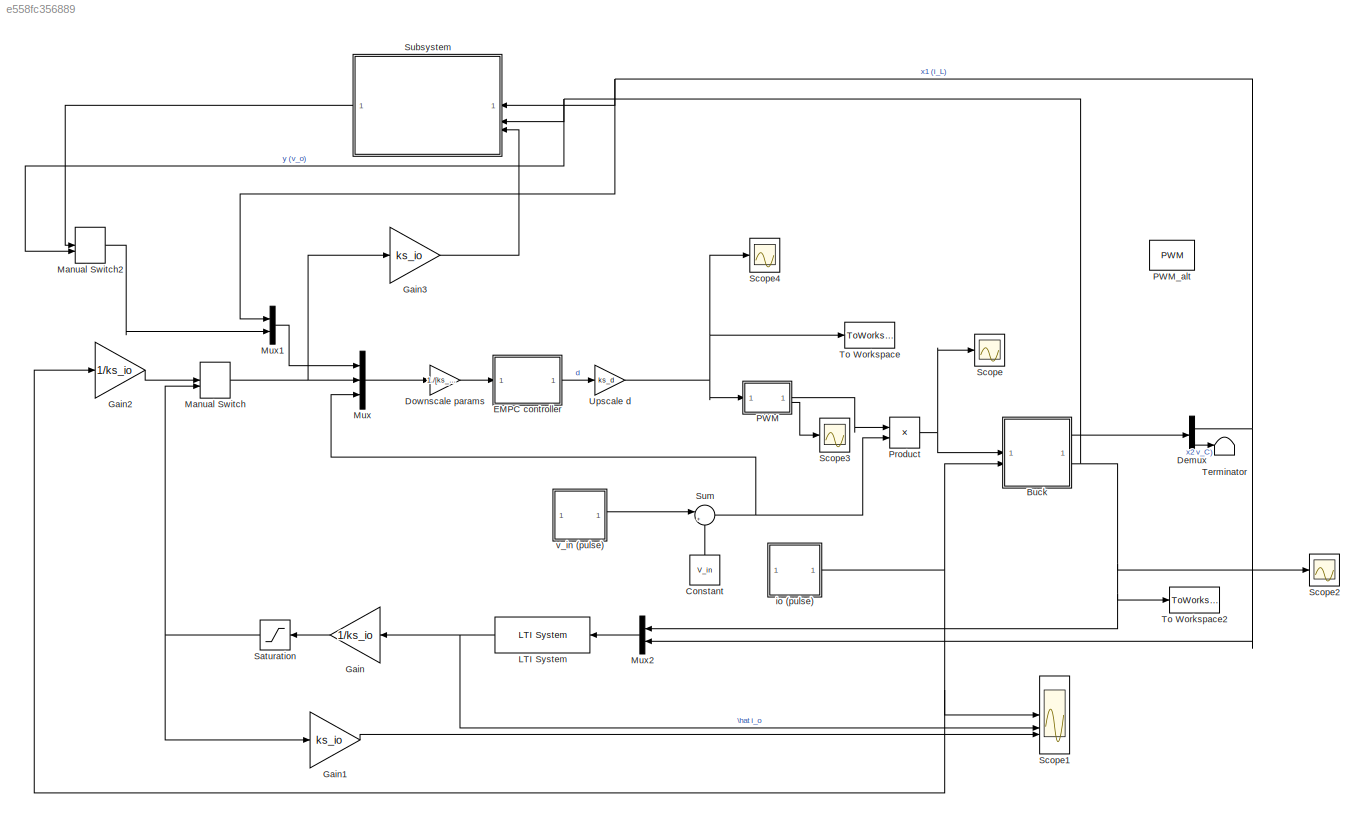
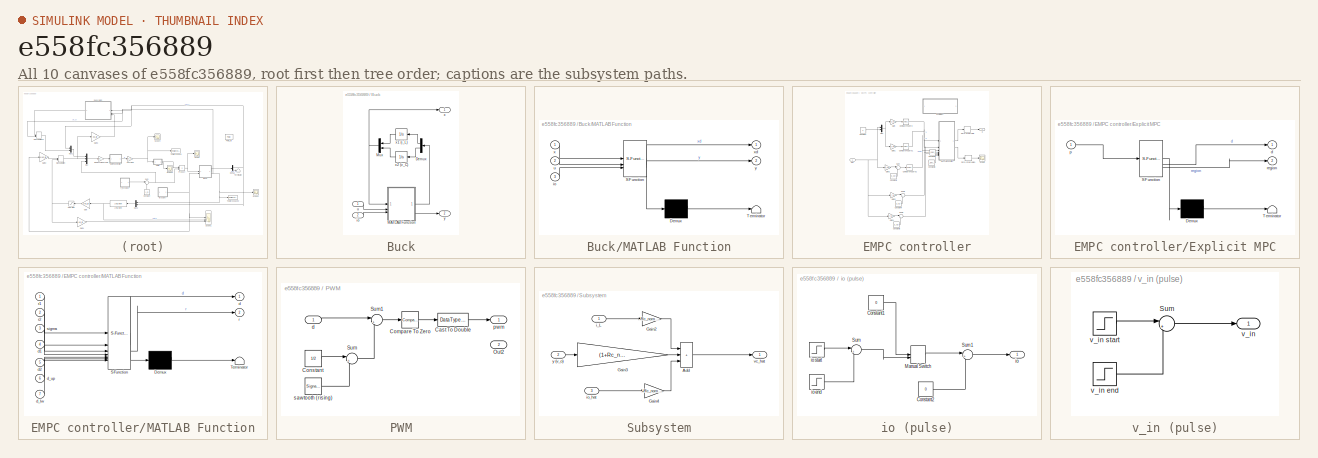
[diagram: thumbnail index - all 10 canvases of the model, root first then tree order]
MODEL slx_e558fc356889
KIND model
CONFIG AbsTol = auto
CONFIG EnableMultiTasking = off
CONFIG FixedStep = dt_sim
CONFIG MaxStep = T_sw/70
CONFIG MinStep = auto
CONFIG RelTol = 1e-4
CONFIG SampleTimeConstraint = Unconstrained
CONFIG SolverName = FixedStepAuto
CONFIG StartTime = 0.0
CONFIG StopTime = N*T_sw
BLOCK [SubSystem] Buck
BLOCK [Demux] Buck/Demux
  NameLocation = top
  Outputs = 2
BLOCK [SubSystem] Buck/MATLAB Function
  ErrorFcn = Stateflow.Translate.translate
  PermitHierarchicalResolution = ExplicitOnly
  SFBlockType = MATLAB Function
  TreatAsAtomicUnit = on
BLOCK [Demux] Buck/MATLAB Function/ Demux 
  Outputs = 1
BLOCK [S-Function] Buck/MATLAB Function/ SFunction 
  EnableBusSupport = on
  FunctionName = sf_sfun
  Parameters = data
  PortCounts = [3 3]
  SFcnIsStateOwnerBlock = off
  SFunctionDeploymentMode = off
  Tag = Stateflow S-Function 2
BLOCK [Terminator] Buck/MATLAB Function/ Terminator 
BLOCK [Inport] Buck/MATLAB Function/io
  Port = 3
BLOCK [Inport] Buck/MATLAB Function/u
  Port = 2
BLOCK [Inport] Buck/MATLAB Function/x
BLOCK [Outport] Buck/MATLAB Function/xd
BLOCK [Outport] Buck/MATLAB Function/y
  Port = 2
BLOCK [Mux] Buck/Mux
  DisplayOption = bar
  Inputs = 2
  NameLocation = top
BLOCK [Inport] Buck/io
  Port = 2
BLOCK [Inport] Buck/u
BLOCK [Outport] Buck/x
BLOCK [Integrator] Buck/x1 (i_L)
  InitialCondition = x0(1)
  LimitOutput = on
  LowerSaturationLimit = 0
  NameLocation = top
BLOCK [Integrator] Buck/x2 (v_C)
  InitialCondition = x0(2)
  NameLocation = top
BLOCK [Outport] Buck/y
  Port = 2
BLOCK [Constant] Constant
  NameLocation = right
  Value = V_in
BLOCK [Demux] Demux
  Outputs = 2
BLOCK [Gain] Downscale params
  Gain = 1./[ks_i_L, ks_v_C, 1, ks_v_in]
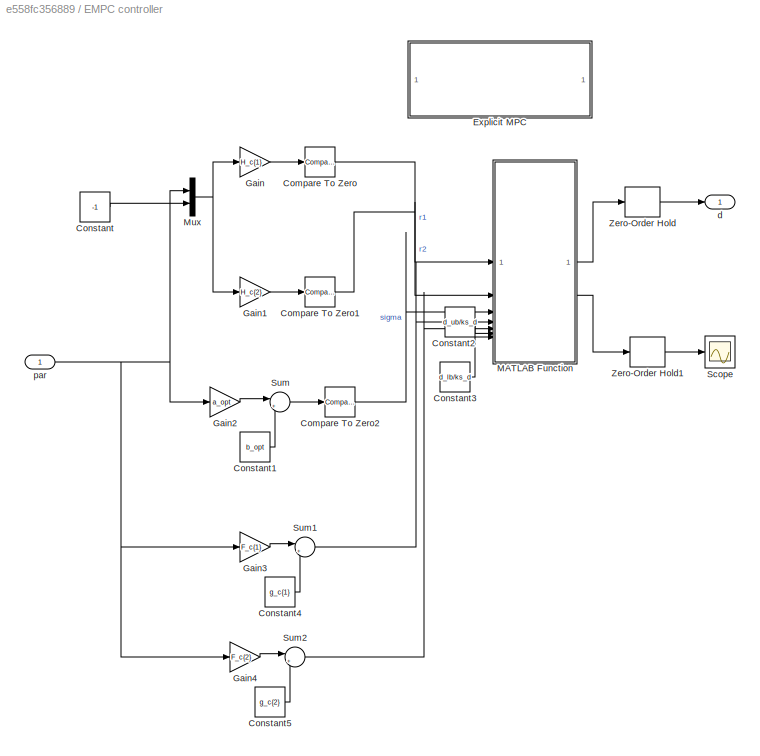
BLOCK [SubSystem] EMPC controller
BLOCK [Reference] EMPC controller/Compare To Zero  REF=simulink/Logic and Bit
Operations/Compare
To Zero
  SourceBlock = simulink/Logic and Bit\nOperations/Compare\nTo Zero
  SourceType = Compare To Zero
BLOCK [Reference] EMPC controller/Compare To Zero1  REF=simulink/Logic and Bit
Operations/Compare
To Zero
  SourceBlock = simulink/Logic and Bit\nOperations/Compare\nTo Zero
  SourceType = Compare To Zero
BLOCK [Reference] EMPC controller/Compare To Zero2  REF=simulink/Logic and Bit
Operations/Compare
To Zero
  SourceBlock = simulink/Logic and Bit\nOperations/Compare\nTo Zero
  SourceType = Compare To Zero
BLOCK [Constant] EMPC controller/Constant
  Value = -1
BLOCK [Constant] EMPC controller/Constant1
  Value = b_opt
BLOCK [Constant] EMPC controller/Constant2
  Value = d_ub/ks_d
BLOCK [Constant] EMPC controller/Constant3
  Value = d_lb/ks_d
BLOCK [Constant] EMPC controller/Constant4
  Value = g_c{1}
BLOCK [Constant] EMPC controller/Constant5
  Value = g_c{2}
BLOCK [SubSystem] EMPC controller/Explicit MPC
  Commented = on
  ErrorFcn = Stateflow.Translate.translate
  PermitHierarchicalResolution = ExplicitOnly
  SFBlockType = MATLAB Function
  TreatAsAtomicUnit = on
BLOCK [Demux] EMPC controller/Explicit MPC/ Demux 
  Outputs = 1
BLOCK [S-Function] EMPC controller/Explicit MPC/ SFunction 
  EnableBusSupport = on
  FunctionName = sf_sfun
  Parameters = data
  PortCounts = [1 3]
  SFcnIsStateOwnerBlock = off
  SFunctionDeploymentMode = off
  Tag = Stateflow S-Function 1
BLOCK [Terminator] EMPC controller/Explicit MPC/ Terminator 
BLOCK [Outport] EMPC controller/Explicit MPC/d
BLOCK [Inport] EMPC controller/Explicit MPC/p
BLOCK [Outport] EMPC controller/Explicit MPC/region
  Port = 2
BLOCK [Gain] EMPC controller/Gain
  Gain = H_c{1}
  Multiplication = Matrix(K*u)
BLOCK [Gain] EMPC controller/Gain1
  Gain = H_c{2}
  Multiplication = Matrix(K*u)
BLOCK [Gain] EMPC controller/Gain2
  Gain = a_opt
  Multiplication = Matrix(K*u)
BLOCK [Gain] EMPC controller/Gain3
  Gain = F_c{1}
  Multiplication = Matrix(K*u)
BLOCK [Gain] EMPC controller/Gain4
  Gain = F_c{2}
  Multiplication = Matrix(K*u)
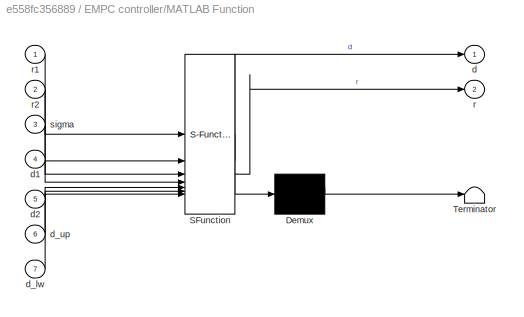
BLOCK [SubSystem] EMPC controller/MATLAB Function
  ErrorFcn = Stateflow.Translate.translate
  PermitHierarchicalResolution = ExplicitOnly
  SFBlockType = MATLAB Function
  TreatAsAtomicUnit = on
BLOCK [Demux] EMPC controller/MATLAB Function/ Demux 
  Outputs = 1
BLOCK [S-Function] EMPC controller/MATLAB Function/ SFunction 
  EnableBusSupport = on
  FunctionName = sf_sfun
  PortCounts = [7 3]
  SFcnIsStateOwnerBlock = off
  SFunctionDeploymentMode = off
  Tag = Stateflow S-Function 3
BLOCK [Terminator] EMPC controller/MATLAB Function/ Terminator 
BLOCK [Outport] EMPC controller/MATLAB Function/d
BLOCK [Inport] EMPC controller/MATLAB Function/d1
  Port = 4
BLOCK [Inport] EMPC controller/MATLAB Function/d2
  Port = 5
BLOCK [Inport] EMPC controller/MATLAB Function/d_lw
  Port = 7
BLOCK [Inport] EMPC controller/MATLAB Function/d_up
  Port = 6
BLOCK [Outport] EMPC controller/MATLAB Function/r
  Port = 2
BLOCK [Inport] EMPC controller/MATLAB Function/r1
BLOCK [Inport] EMPC controller/MATLAB Function/r2
  Port = 2
BLOCK [Inport] EMPC controller/MATLAB Function/sigma
  Port = 3
BLOCK [Mux] EMPC controller/Mux
  DisplayOption = bar
  Inputs = 2
BLOCK [Scope] EMPC controller/Scope
  Floating = off
  NumInputPorts = 1
  ScopeSpecificationString = Simulink.scopes.TimeScopeBlockCfg('CurrentConfiguration', extmgr.ConfigurationSet(extmgr.Configuration('Core','General UI',true),extmgr.Configuration('Core','Source UI',true),extmgr.Configuration('Sources','WiredSimulink',true,'DataLoggingVariableName','ScopeData1'),extmgr.Configuration('Visuals','Time Domain',true,'SerializedDisplays',{struct('MinYLimReal','-0.25','MaxYLimReal','2.25','YLabelReal...<+1520ch>
BLOCK [Sum] EMPC controller/Sum
  Inputs = |++
BLOCK [Sum] EMPC controller/Sum1
  Inputs = |++
BLOCK [Sum] EMPC controller/Sum2
  Inputs = |++
BLOCK [ZeroOrderHold] EMPC controller/Zero-Order Hold
  SampleTime = T_sw
BLOCK [ZeroOrderHold] EMPC controller/Zero-Order Hold1
  SampleTime = T_sw
BLOCK [Outport] EMPC controller/d
BLOCK [Inport] EMPC controller/par
BLOCK [Gain] Gain
  Gain = 1/ks_io
  NameLocation = top
BLOCK [Gain] Gain1
  Gain = ks_io
BLOCK [Gain] Gain2
  Gain = 1/ks_io
BLOCK [Gain] Gain3
  Gain = ks_io
BLOCK [Reference] LTI System  REF=cstblocks/LTI System
  NameLocation = top
  SourceBlock = cstblocks/LTI System
  SourceType = LTI Block
BLOCK [ManualSwitch] Manual Switch
  CurrentSetting = 0
BLOCK [ManualSwitch] Manual Switch2
  CurrentSetting = 0
BLOCK [Mux] Mux
  DisplayOption = bar
  Inputs = 3
BLOCK [Mux] Mux1
  DisplayOption = bar
  Inputs = 2
BLOCK [Mux] Mux2
  DisplayOption = bar
  Inputs = 2
  NameLocation = top
BLOCK [SubSystem] PWM
BLOCK [DataTypeConversion] PWM/Cast To Double
  OutDataTypeStr = double
  OutMax = 1
  OutMin = 0
  RndMeth = Round
  SaturateOnIntegerOverflow = off
BLOCK [Reference] PWM/Compare To Zero  REF=simulink/Logic and Bit
Operations/Compare
To Zero
  SourceBlock = simulink/Logic and Bit\nOperations/Compare\nTo Zero
  SourceType = Compare To Zero
BLOCK [Constant] PWM/Constant
  Value = 1/2
BLOCK [Outport] PWM/Out2
  Port = 2
BLOCK [Sum] PWM/Sum
  Inputs = |++
BLOCK [Sum] PWM/Sum1
  Inputs = |+-
BLOCK [Inport] PWM/d
BLOCK [Outport] PWM/pwm
BLOCK [SignalGenerator] PWM/sawtooth (rising)
  Amplitude = -1/2
  Frequency = f_sw
  WaveForm = sawtooth
BLOCK [Reference] PWM_alt  REF=simulink/Discontinuities/PWM
  Commented = on
  DisableCoverage = on
  SourceBlock = simulink/Discontinuities/PWM
  SourceType = PWM
BLOCK [Product] Product
BLOCK [Saturate] Saturation
  LowerLimit = 0
  NameLocation = top
  UpperLimit = 5
BLOCK [Scope] Scope
  Floating = off
  NumInputPorts = 1
  ScopeSpecificationString = Simulink.scopes.TimeScopeBlockCfg('CurrentConfiguration', extmgr.ConfigurationSet(extmgr.Configuration('Core','General UI',true),extmgr.Configuration('Core','Source UI',true),extmgr.Configuration('Sources','WiredSimulink',true,'DataLoggingVariableName','ScopeData1'),extmgr.Configuration('Visuals','Time Domain',true,'SerializedDisplays',{struct('MinYLimReal','-6.25','MaxYLimReal','56.25','YLabelRea...<+1512ch>
BLOCK [Scope] Scope1
  Floating = off
  NumInputPorts = 3
  ScopeSpecificationString = Simulink.scopes.TimeScopeBlockCfg('CurrentConfiguration', extmgr.ConfigurationSet(extmgr.Configuration('Core','General UI',true),extmgr.Configuration('Core','Source UI',true),extmgr.Configuration('Sources','WiredSimulink',true,'DataLoggingVariableName','ScopeData1'),extmgr.Configuration('Visuals','Time Domain',true,'SerializedDisplays',{struct('MinYLimReal','-1.70521','MaxYLimReal','15.34686','YLa...<+1621ch>
BLOCK [Scope] Scope2
  Floating = off
  NumInputPorts = 1
  ScopeSpecificationString = Simulink.scopes.TimeScopeBlockCfg('CurrentConfiguration', extmgr.ConfigurationSet(extmgr.Configuration('Core','General UI',true),extmgr.Configuration('Core','Source UI',true),extmgr.Configuration('Sources','WiredSimulink',true,'DataLoggingVariableName','ScopeData2'),extmgr.Configuration('Visuals','Time Domain',true,'SerializedDisplays',{struct('MinYLimReal','4.88323','MaxYLimReal','5.05424','YLabe...<+1527ch>
BLOCK [Scope] Scope3
  Floating = off
  NumInputPorts = 1
  ScopeSpecificationString = Simulink.scopes.TimeScopeBlockCfg('CurrentConfiguration', extmgr.ConfigurationSet(extmgr.Configuration('Core','General UI',true),extmgr.Configuration('Core','Source UI',true),extmgr.Configuration('Sources','WiredSimulink',true,'DataLoggingVariableName','ScopeData1'),extmgr.Configuration('Visuals','Time Domain',true,'SerializedDisplays',{struct('MinYLimReal','-0.10611','MaxYLimReal','1.1229','YLabe...<+1472ch>
BLOCK [Scope] Scope4
  Floating = off
  NumInputPorts = 1
  ScopeSpecificationString = Simulink.scopes.TimeScopeBlockCfg('CurrentConfiguration', extmgr.ConfigurationSet(extmgr.Configuration('Core','General UI',true),extmgr.Configuration('Core','Source UI',true),extmgr.Configuration('Sources','WiredSimulink',true,'DataLoggingVariableName','ScopeData1'),extmgr.Configuration('Visuals','Time Domain',true,'SerializedDisplays',{struct('MinYLimReal','-0.10611','MaxYLimReal','1.1229','YLabe...<+1472ch>
BLOCK [SubSystem] Subsystem
  NameLocation = top
BLOCK [Sum] Subsystem/Add
  IconShape = rectangular
  Inputs = +++
BLOCK [Gain] Subsystem/Gain2
  Gain = -Rc_nominal
BLOCK [Gain] Subsystem/Gain3
  Gain = (1+Rc_nominal/RL_nominal)
BLOCK [Gain] Subsystem/Gain4
  Gain = +Rc_nominal
BLOCK [Inport] Subsystem/i_L
  NameLocation = top
BLOCK [Inport] Subsystem/io_hat
  NameLocation = top
  Port = 3
BLOCK [Outport] Subsystem/vc_hat
BLOCK [Inport] Subsystem/y (v_o)
  Port = 2
BLOCK [Sum] Sum
  Inputs = |++
BLOCK [Terminator] Terminator
BLOCK [ToWorkspace] To Workspace
  FixptAsFi = on
  MaxDataPoints = inf
  SampleTime = -1
  SaveFormat = Timeseries
  VariableName = d
BLOCK [ToWorkspace] To Workspace2
  FixptAsFi = on
  MaxDataPoints = inf
  SampleTime = -1
  SaveFormat = Timeseries
  VariableName = y
BLOCK [Gain] Upscale d
  Gain = ks_d
BLOCK [SubSystem] io (pulse)
BLOCK [Constant] io (pulse)/Constant1
  Value = 0
BLOCK [Constant] io (pulse)/Constant2
  Value = 0
BLOCK [ManualSwitch] io (pulse)/Manual Switch
  CurrentSetting = 0
BLOCK [Sum] io (pulse)/Sum
  Inputs = |++
BLOCK [Sum] io (pulse)/Sum1
  Inputs = |++
BLOCK [Outport] io (pulse)/io
BLOCK [Step] io (pulse)/io end
  After = -0.8*io
  SampleTime = 0
  Time = N_io_end*T_sw
BLOCK [Step] io (pulse)/io start
  After = io
  SampleTime = 0
  Time = N_io_start*T_sw
BLOCK [SubSystem] v_in (pulse)
BLOCK [Sum] v_in (pulse)/Sum
  Inputs = |++
BLOCK [Outport] v_in (pulse)/v_in
BLOCK [Step] v_in (pulse)/v_in end
  After = -v_in
  SampleTime = 0
  Time = N_v_in_end*T_sw
BLOCK [Step] v_in (pulse)/v_in start
  After = v_in
  SampleTime = 0
  Time = N_v_in_start*T_sw
LINE Buck/Demux:1 -> Buck/x1 (i_L):1
LINE Buck/Demux:2 -> Buck/x2 (v_C):1
LINE Buck/MATLAB Function:1 -> Buck/Demux:1
LINE Buck/MATLAB Function:2 -> Buck/y:1
NET Buck/Mux:1 -> Buck/MATLAB Function:1, Buck/x:1
LINE Buck/io:1 -> Buck/MATLAB Function:3
LINE Buck/u:1 -> Buck/MATLAB Function:2
LINE Buck/x1 (i_L):1 -> Buck/Mux:1
LINE Buck/x2 (v_C):1 -> Buck/Mux:2
LINE Buck:1 -> Demux:1
NET Buck:2 -> Manual Switch2:2, Mux2:1, Scope2:1, Subsystem:2, To Workspace2:1
LINE Constant:1 -> Sum:2
NET Demux:1 -> Mux1:1, Mux2:2, Subsystem:1
LINE Demux:2 -> Terminator:1
LINE Downscale params:1 -> EMPC controller:1
LINE EMPC controller/Compare To Zero1:1 -> EMPC controller/MATLAB Function:2
LINE EMPC controller/Compare To Zero2:1 -> EMPC controller/MATLAB Function:3
LINE EMPC controller/Compare To Zero:1 -> EMPC controller/MATLAB Function:1
LINE EMPC controller/Constant1:1 -> EMPC controller/Sum:2
LINE EMPC controller/Constant2:1 -> EMPC controller/MATLAB Function:6
LINE EMPC controller/Constant3:1 -> EMPC controller/MATLAB Function:7
LINE EMPC controller/Constant4:1 -> EMPC controller/Sum1:2
LINE EMPC controller/Constant5:1 -> EMPC controller/Sum2:2
LINE EMPC controller/Constant:1 -> EMPC controller/Mux:2
LINE EMPC controller/Gain1:1 -> EMPC controller/Compare To Zero1:1
LINE EMPC controller/Gain2:1 -> EMPC controller/Sum:1
LINE EMPC controller/Gain3:1 -> EMPC controller/Sum1:1
LINE EMPC controller/Gain4:1 -> EMPC controller/Sum2:1
LINE EMPC controller/Gain:1 -> EMPC controller/Compare To Zero:1
LINE EMPC controller/MATLAB Function:1 -> EMPC controller/Zero-Order Hold:1
LINE EMPC controller/MATLAB Function:2 -> EMPC controller/Zero-Order Hold1:1
NET EMPC controller/Mux:1 -> EMPC controller/Gain1:1, EMPC controller/Gain:1
LINE EMPC controller/Sum1:1 -> EMPC controller/MATLAB Function:4
LINE EMPC controller/Sum2:1 -> EMPC controller/MATLAB Function:5
LINE EMPC controller/Sum:1 -> EMPC controller/Compare To Zero2:1
LINE EMPC controller/Zero-Order Hold1:1 -> EMPC controller/Scope:1
LINE EMPC controller/Zero-Order Hold:1 -> EMPC controller/d:1
NET EMPC controller/par:1 -> EMPC controller/Gain2:1, EMPC controller/Gain3:1, EMPC controller/Gain4:1, EMPC controller/Mux:1
LINE EMPC controller:1 -> Upscale d:1
LINE Gain1:1 -> Scope1:3
LINE Gain2:1 -> Manual Switch:1
LINE Gain3:1 -> Subsystem:3
LINE Gain:1 -> Saturation:1
NET LTI System:1 -> Gain:1, Scope1:2
LINE Manual Switch2:1 -> Mux1:2
NET Manual Switch:1 -> Gain3:1, Mux:2
LINE Mux1:1 -> Mux:1
LINE Mux2:1 -> LTI System:1
LINE Mux:1 -> Downscale params:1
LINE PWM/Cast To Double:1 -> PWM/pwm:1
LINE PWM/Compare To Zero:1 -> PWM/Cast To Double:1
LINE PWM/Constant:1 -> PWM/Sum:1
LINE PWM/Sum1:1 -> PWM/Compare To Zero:1
LINE PWM/Sum:1 -> PWM/Sum1:2
LINE PWM/d:1 -> PWM/Sum1:1
LINE PWM/sawtooth (rising):1 -> PWM/Sum:2
LINE PWM:1 -> Product:1
LINE PWM:2 -> Scope3:1
NET Product:1 -> Buck:1, Scope:1
NET Saturation:1 -> Gain1:1, Manual Switch:2
LINE Subsystem/Add:1 -> Subsystem/vc_hat:1
LINE Subsystem/Gain2:1 -> Subsystem/Add:1
LINE Subsystem/Gain3:1 -> Subsystem/Add:2
LINE Subsystem/Gain4:1 -> Subsystem/Add:3
LINE Subsystem/i_L:1 -> Subsystem/Gain2:1
LINE Subsystem/io_hat:1 -> Subsystem/Gain4:1
LINE Subsystem/y (v_o):1 -> Subsystem/Gain3:1
LINE Subsystem:1 -> Manual Switch2:1
NET Sum:1 -> Mux:3, Product:2
NET Upscale d:1 -> PWM:1, Scope4:1, To Workspace:1
LINE io (pulse)/Constant1:1 -> io (pulse)/Manual Switch:1
LINE io (pulse)/Constant2:1 -> io (pulse)/Sum1:2
LINE io (pulse)/Manual Switch:1 -> io (pulse)/Sum1:1
LINE io (pulse)/Sum1:1 -> io (pulse)/io:1
LINE io (pulse)/Sum:1 -> io (pulse)/Manual Switch:2
LINE io (pulse)/io end:1 -> io (pulse)/Sum:2
LINE io (pulse)/io start:1 -> io (pulse)/Sum:1
NET io (pulse):1 -> Buck:2, Gain2:1, Scope1:1
LINE v_in (pulse)/Sum:1 -> v_in (pulse)/v_in:1
LINE v_in (pulse)/v_in end:1 -> v_in (pulse)/Sum:2
LINE v_in (pulse)/v_in start:1 -> v_in (pulse)/Sum:1
LINE v_in (pulse):1 -> Sum:1
note: NET lines group one-source signal fan-out (src -> all destinations, sorted); 1:1 wires keep LINE
CHART EMPC controller/Explicit MPC states=1 transitions=1
  STATE_LABEL 'eML_blk_kernel()'
  STATE_LABEL 'SCRIPT:\nfunction [d,region] = empc_controller(p, data)\n\nd = -1;\n\nks_d = data.ks_d;\n\nn_reg = data.n_reg;\nH = data.H;\nF = data.F;\ng = data.g;\nni = data.ni;\n\na_opt = data.a_opt;\nb_opt = data.b_opt;\n\nsep_fun = @(x) a_opt*x + b_opt;\n\n%p = [x; io; v_in]; % Param value\n\nregion = 0;\nph = [p; -1];\nfor i=1:1:n_reg\n\tif all( H( (ni(i)+1):1:(ni(i+1)) , : )*ph <= 1e-08 ) % Check non-saturated region\n\t\td = F(i,:...<+201ch>'
CHART Buck/MATLAB Function states=1 transitions=1
  STATE_LABEL 'eML_blk_kernel()'
  STATE_LABEL 'SCRIPT:\nfunction [xd, y] = buck_ct(x,u,io,data)\n\nA = data.A;\nB1 = data.B1;\nB2 = data.B2;\nC = data.C;\nD1 = data.D1;\n\nxd = A*x + B1*io + B2*u;\ny = C*x + D1*io;\n\nend\n'
CHART EMPC controller/MATLAB Function states=1 transitions=1
  STATE_LABEL 'eML_blk_kernel()'
  STATE_LABEL 'SCRIPT:\nfunction [d,r] = mux_and_logic(r1,r2,sigma,d1,d2,d_up,d_lw)\nr=0;\nif all(r1)\n    d = d1;\n    r = 1;\nelseif all(r2)\n    d = d2;\n    r = 2;\nelseif sigma\n    d = d_up;\nelse\n    d = d_lw;\nend\n\nend\n'
CHART  states=0 transitions=0
CHART  states=0 transitions=0
CHART  states=0 transitions=0
